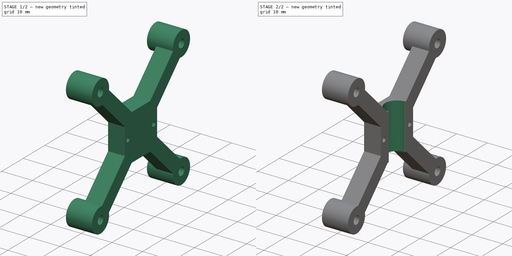
[diagram: build sequence overview — one tinted view per stage of 2, left to right]
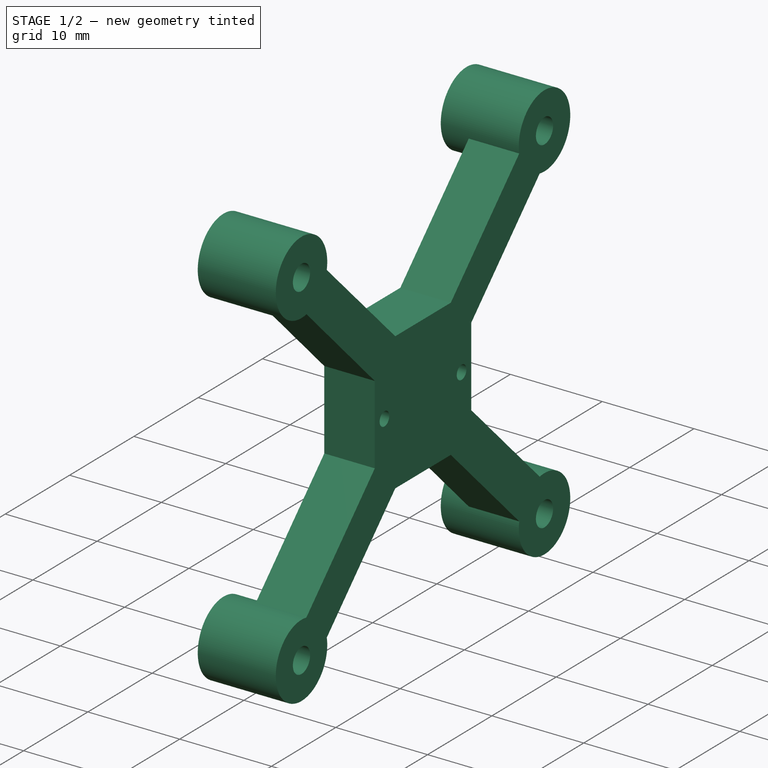
[diagram: stage 1 of 2 — iso view after this stage's code; geometry added in this stage tinted green]
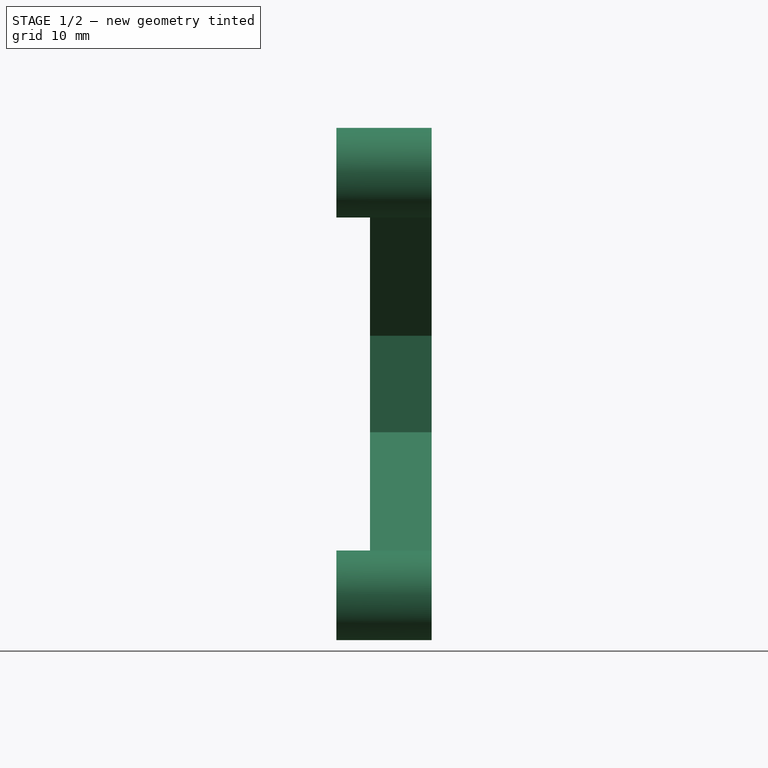
[diagram: stage 1 of 2 — front view after this stage's code; geometry added in this stage tinted green]
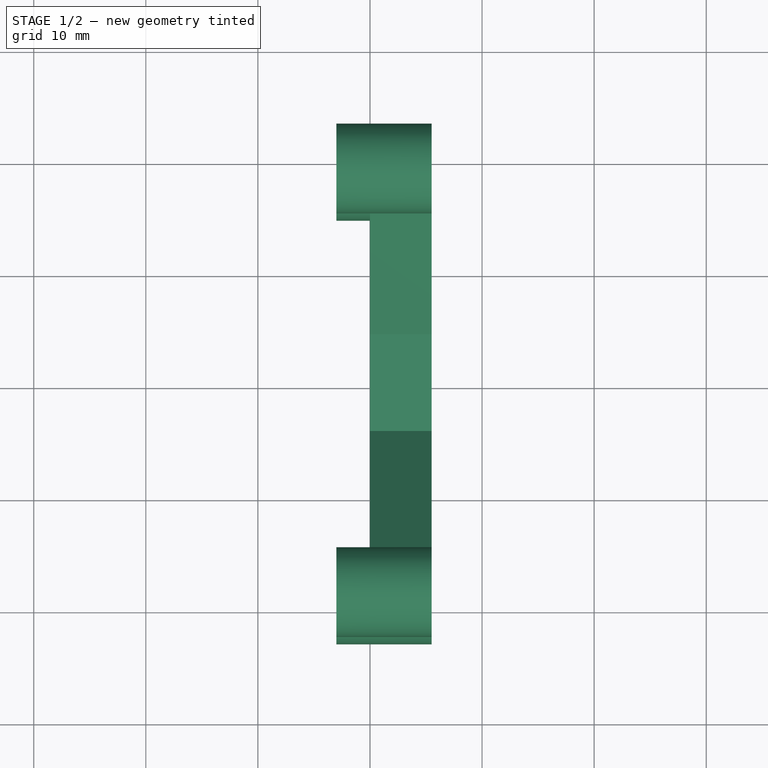
[diagram: stage 1 of 2 — top view after this stage's code; geometry added in this stage tinted green]
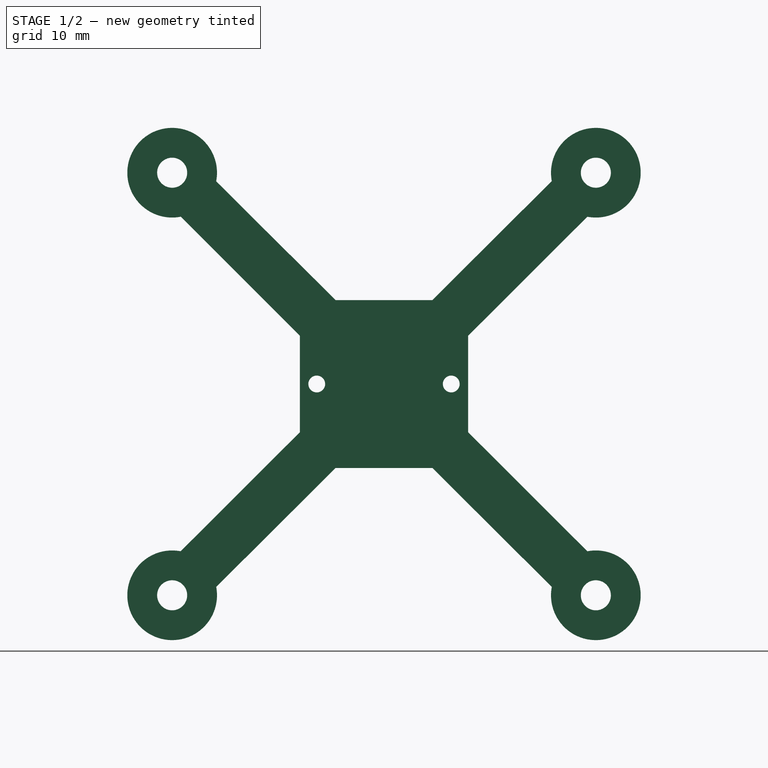
[diagram: stage 1 of 2 — right view after this stage's code; geometry added in this stage tinted green]
FCSTD DOCUMENT  (FreeCAD 0.18R16093 (Git))
Label: Soporte_Drivers
License: All rights reserved
LicenseURL: http://en.wikipedia.org/wiki/All_rights_reserved
objects: Sketcher::SketchObject×3, PartDesign::Pad×2, PartDesign::Pocket×1, PartDesign::Body×1
note: 10 computed .brp shape members not serialized (recipe doc carries the construction recipe); baked Part::Feature solids carry a one-line shape summary decoded from their .brp

FEATURE [Sketcher::SketchObject] Sketch149
  MapMode = 5
  Placement = pos=(0,0,0) rot=(0.57735,0.57735,0.57735;2.0944rad)
  Support = -> [YZ_Plane060]
  sketch-geometry (29):
    g0: LineSegment [constr] StartX=-22 StartY=21.95 StartZ=0 EndX=22 EndY=21.95 EndZ=0
    g1: LineSegment [constr] StartX=22 StartY=21.95 StartZ=0 EndX=22 EndY=-25.05 EndZ=0
    g2: LineSegment [constr] StartX=22 StartY=-25.05 StartZ=0 EndX=-22 EndY=-25.05 EndZ=0
    g3: LineSegment [constr] StartX=-22 StartY=-25.05 StartZ=0 EndX=-22 EndY=21.95 EndZ=0
    g4: Circle CenterX=-18.9 CenterY=18.85 CenterZ=0 NormalX=0 NormalY=0 NormalZ=1 AngleXU=0 Radius=1.34
    g5: Circle CenterX=18.9 CenterY=18.85 CenterZ=0 NormalX=0 NormalY=0 NormalZ=1 AngleXU=0 Radius=1.34
    g6: Circle CenterX=-18.9 CenterY=-18.85 CenterZ=0 NormalX=0 NormalY=0 NormalZ=1 AngleXU=0 Radius=1.34
    g7: Circle CenterX=18.9 CenterY=-18.85 CenterZ=0 NormalX=0 NormalY=0 NormalZ=1 AngleXU=0 Radius=1.34
    g8: ArcOfCircle CenterX=-18.9 CenterY=18.85 CenterZ=0 NormalX=0 NormalY=0 NormalZ=1 AngleXU=0 Radius=4 StartAngle=6.09051 EndAngle=11.1909
    g9: LineSegment StartX=0 StartY=7.48858 StartZ=0 EndX=-4.32224 EndY=7.48858 EndZ=0
    g10: LineSegment StartX=-18.1237 StartY=14.9261 StartZ=0 EndX=-7.5 EndY=4.30238 EndZ=0
    g11: LineSegment StartX=-14.974 StartY=18.0841 StartZ=0 EndX=-4.32224 EndY=7.48858 EndZ=0
    g12: LineSegment StartX=0 StartY=7.48858 StartZ=0 EndX=4.32224 EndY=7.48858 EndZ=0
    g13: LineSegment StartX=14.9695 StartY=18.1077 StartZ=0 EndX=4.32224 EndY=7.48858 EndZ=0
    g14: ArcOfCircle CenterX=18.9 CenterY=18.85 CenterZ=0 NormalX=0 NormalY=0 NormalZ=1 AngleXU=0 Radius=4 StartAngle=4.52307 EndAngle=9.61145
    g15: LineSegment StartX=18.1473 StartY=14.9215 StartZ=0 EndX=7.5 EndY=4.30238 EndZ=0
    g16: LineSegment StartX=7.5 StartY=4.30238 StartZ=0 EndX=7.5 EndY=-4.30238 EndZ=0
    g17: LineSegment [constr] StartX=-18.9 StartY=18.85 StartZ=0 EndX=18.9 EndY=-18.85 EndZ=0
    g18: LineSegment [constr] StartX=-18.9 StartY=-18.85 StartZ=0 EndX=18.9 EndY=18.85 EndZ=0
    g19: LineSegment StartX=-7.5 StartY=-4.30238 StartZ=0 EndX=-7.5 EndY=4.30238 EndZ=0
    g20: LineSegment StartX=-18.1473 StartY=-14.9215 StartZ=0 EndX=-7.5 EndY=-4.30238 EndZ=0
    g21: LineSegment StartX=-14.9695 StartY=-18.1077 StartZ=0 EndX=-4.32224 EndY=-7.48858 EndZ=0
    g22: LineSegment StartX=4.32224 StartY=-7.48858 StartZ=0 EndX=-4.32224 EndY=-7.48858 EndZ=0
    g23: LineSegment StartX=14.9695 StartY=-18.1077 StartZ=0 EndX=4.32224 EndY=-7.48858 EndZ=0
    g24: LineSegment StartX=18.1473 StartY=-14.9215 StartZ=0 EndX=7.5 EndY=-4.30238 EndZ=0
    g25: ArcOfCircle CenterX=-18.9 CenterY=-18.85 CenterZ=0 NormalX=0 NormalY=0 NormalZ=1 AngleXU=0 Radius=4 StartAngle=1.38148 EndAngle=6.46985
    g26: ArcOfCircle CenterX=18.9 CenterY=-18.85 CenterZ=0 NormalX=0 NormalY=0 NormalZ=1 AngleXU=0 Radius=4 StartAngle=2.95493 EndAngle=8.0433
    g27: Circle CenterX=-6 CenterY=0 CenterZ=0 NormalX=0 NormalY=0 NormalZ=1 AngleXU=0 Radius=0.75
    g28: Circle CenterX=6 CenterY=0 CenterZ=0 NormalX=0 NormalY=0 NormalZ=1 AngleXU=0 Radius=0.75
  constraints (79):
    c: Coincident(g0,g1)
    c: Coincident(g1,g2)
    c: Coincident(g2,g3)
    c: Coincident(g3,g0)
    c: Horizontal(g2)
    c: Vertical(g1)
    c: Symmetric(g0,g0,g-2)
    c: Radius(g4) = 1.34
    c: Distance(g4,g3) = 3.1
    c: Distance(g4,g0) = 3.1
    c: Radius(g5) = 1.34
    c: Distance(g5,g0) = 3.1
    c: Distance(g5,g1) = 3.1
    c: Radius(g6) = 1.34
    c: Distance(g6,g3) = 3.1
    c: Distance(g6,g2) = 6.2
    c: Radius(g7) = 1.34
    c: Distance(g7,g1) = 3.1
    c: Distance(g7,g2) = 6.2
    c: Distance(g5,g4) = 37.8
    c: Distance(g4,g6) = 37.7
    c: Radius(g8) = 4
    c: Coincident(g8,g4)
    c: Horizontal(g9)
    c: Symmetric(g6,g4,g-1)
    c: Angle(g-1,g10) = 2.35619
    c: PointOnObject(g9,g-2)
    c: Coincident(g9,g11)
    c: Coincident(g8,g11)
    c: Coincident(g8,g10)
    c: Radius(g14) = 4
    c: Vertical(g16)
    c: Parallel(g13,g15)
    c: Coincident(g12,g13)
    c: Coincident(g16,g15)
    c: Coincident(g14,g13)
    c: Coincident(g14,g15)
    c: Coincident(g9,g12)
    c: Symmetric(g9,g12,g-2)
    c: Coincident(g17,g4)
    c: Coincident(g17,g7)
    c: Symmetric(g9,g10,g17)
    c: Coincident(g18,g14)
    c: Coincident(g14,g5)
    c: Symmetric(g15,g12,g18)
    c: Symmetric(g14,g13,g18)
    c: Coincident(g18,g6)
    c: Symmetric(g8,g8,g17)
    c: Distance(g9,g10) = 4.5
    c: Horizontal(g22)
    c: Vertical(g19)
    c: Coincident(g22,g21)
    c: Coincident(g19,g20)
    c: Parallel(g23,g24)
    c: Distance(g22,g19) = 4.5
    c: Symmetric(g23,g24,g17)
    c: Distance(g23,g24) = 4.5
    c: Symmetric(g21,g19,g18)
    c: Parallel(g20,g21)
    c: Coincident(g23,g22)
    c: Coincident(g19,g10)
    c: DistanceX(g10,g15) = 15
    c: Coincident(g16,g24)
    c: Diameter(g25) = 8
    c: Coincident(g25,g20)
    c: Coincident(g25,g21)
    c: Coincident(g6,g25)
    c: Diameter(g26) = 8
    c: Coincident(g26,g7)
    c: Coincident(g26,g23)
    c: Coincident(g26,g24)
    c: Symmetric(g23,g24,g17)
    c: Symmetric(g20,g21,g18)
    c: Diameter(g27) = 1.5
    c: Distance(g27,g19) = 1.5
    c: PointOnObject(g27,g-1)
    c: Diameter(g28) = 1.5
    c: PointOnObject(g28,g-1)
    c: Distance(g28,g16) = 1.5
FEATURE [PartDesign::Pad] Pad074
  Length = 5.5
  Length2 = 100
  Placement = pos=(0,0,0) rot=(0.57735,0.57735,0.57735;2.0944rad)
  Profile = -> Sketch149
  Type = 0
FEATURE [Sketcher::SketchObject] Sketch150
  ExternalGeometry = -> [Pad074]
  MapMode = 5
  Placement = pos=(0,0,0) rot=(0.57735,0.57735,-0.57735;4.18879rad)
  Support = -> [Pad074]
  sketch-geometry (8):
    g0: Circle CenterX=-18.9 CenterY=-18.85 CenterZ=0 NormalX=0 NormalY=0 NormalZ=1 AngleXU=0 Radius=4
    g1: Circle CenterX=18.9 CenterY=-18.85 CenterZ=0 NormalX=0 NormalY=0 NormalZ=1 AngleXU=0 Radius=4
    g2: Circle CenterX=-18.9 CenterY=18.85 CenterZ=0 NormalX=0 NormalY=0 NormalZ=1 AngleXU=0 Radius=4
    g3: Circle CenterX=18.9 CenterY=18.85 CenterZ=0 NormalX=0 NormalY=0 NormalZ=1 AngleXU=0 Radius=4
    g4: Circle CenterX=-18.9 CenterY=-18.85 CenterZ=0 NormalX=0 NormalY=0 NormalZ=1 AngleXU=0 Radius=1.34
    g5: Circle CenterX=18.9 CenterY=-18.85 CenterZ=0 NormalX=0 NormalY=0 NormalZ=1 AngleXU=0 Radius=1.34
    g6: Circle CenterX=18.9 CenterY=18.85 CenterZ=0 NormalX=0 NormalY=0 NormalZ=1 AngleXU=0 Radius=1.34
    g7: Circle CenterX=-18.9 CenterY=18.85 CenterZ=0 NormalX=0 NormalY=0 NormalZ=1 AngleXU=0 Radius=1.34
  constraints (16):
    c: Coincident(g0,g-3)
    c: Diameter(g0) = 8
    c: Diameter(g1) = 8
    c: Diameter(g2) = 8
    c: Diameter(g3) = 8
    c: Coincident(g2,g-6)
    c: Coincident(g3,g-5)
    c: Coincident(g1,g-4)
    c: Equal(g4,g-3)
    c: Coincident(g4,g0)
    c: Equal(g-4,g5)
    c: Coincident(g5,g1)
    c: Equal(g6,g-5)
    c: Coincident(g6,g3)
    c: Equal(g7,g-6)
    c: Coincident(g7,g2)
FEATURE [PartDesign::Pad] Pad075
  BaseFeature = -> Pad074
  Length = 3
  Length2 = 100
  Placement = pos=(0,0,0) rot=(0.57735,0.57735,0.57735;2.0944rad)
  Profile = -> Sketch150
  Type = 0
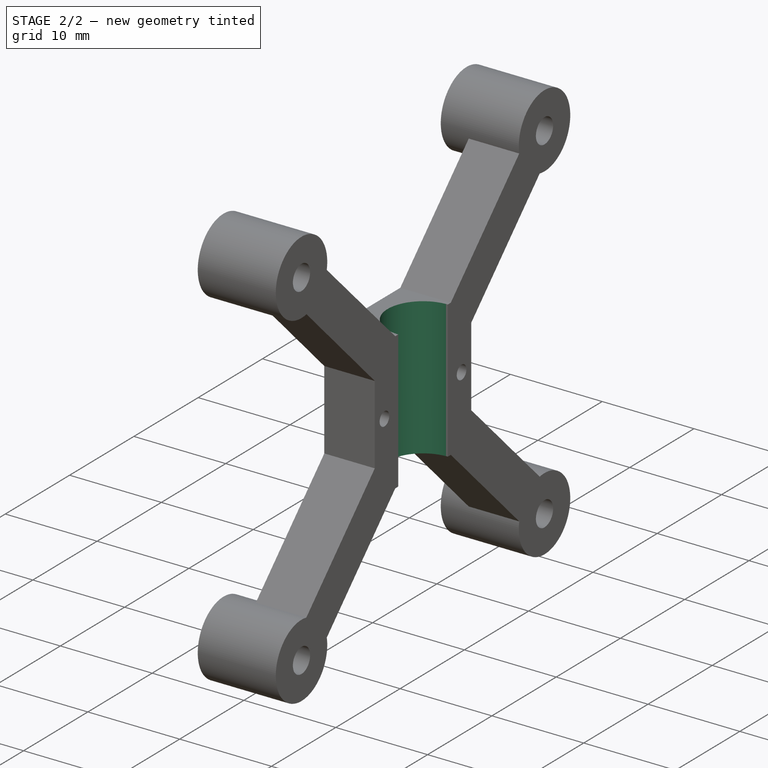
[diagram: stage 2 of 2 — iso view after this stage's code; geometry added in this stage tinted green]
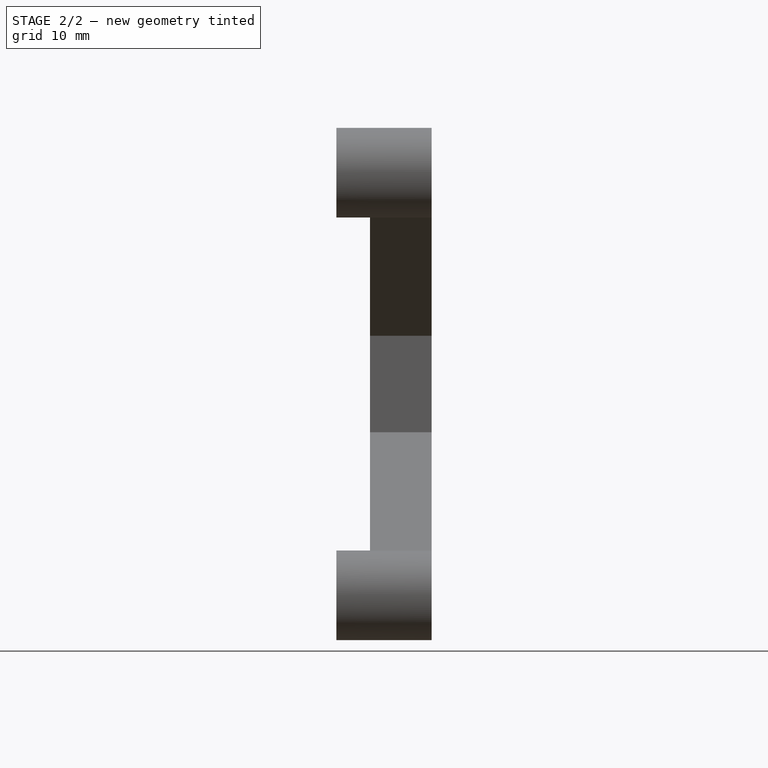
[diagram: stage 2 of 2 — front view after this stage's code; geometry added in this stage tinted green]
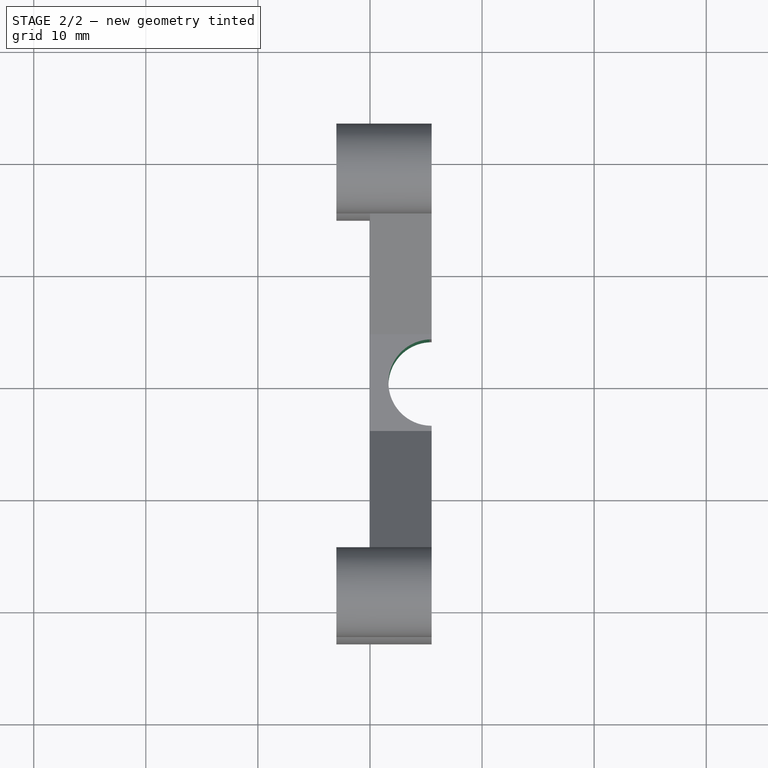
[diagram: stage 2 of 2 — top view after this stage's code; geometry added in this stage tinted green]
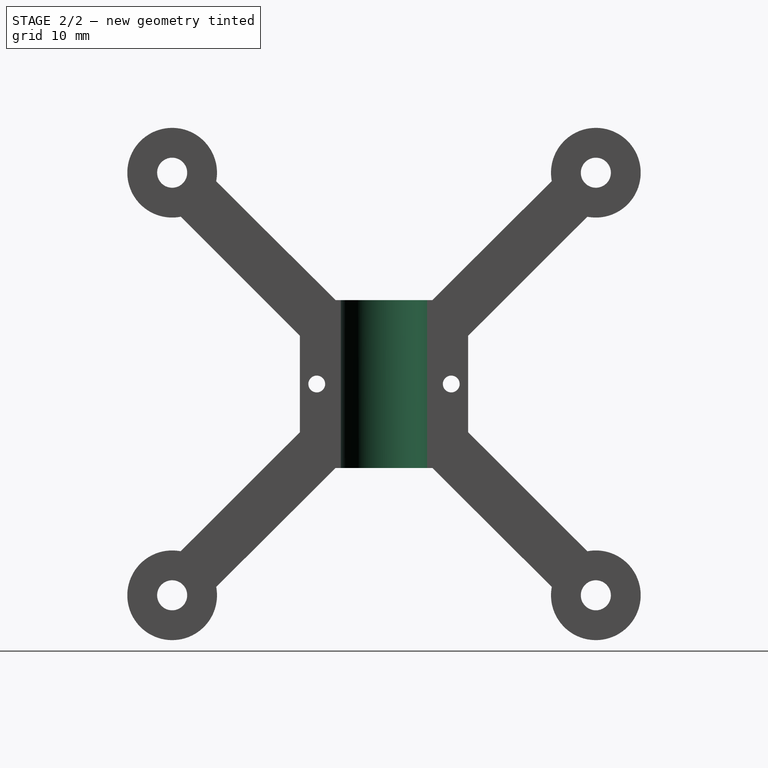
[diagram: stage 2 of 2 — right view after this stage's code; geometry added in this stage tinted green]
FEATURE [Sketcher::SketchObject] Sketch151
  ExternalGeometry = -> [Pad075]
  MapMode = 5
  Placement = pos=(2.1e-15,-3.3e-15,-7.48858) rot=(0.707107,0.707107,0;3.14159rad)
  Support = -> [Pad075]
  sketch-geometry (1):
    g0: Circle CenterX=0 CenterY=5.5 CenterZ=0 NormalX=0 NormalY=0 NormalZ=1 AngleXU=0 Radius=3.855
  constraints (3):
    c: Diameter(g0) = 7.71
    c: PointOnObject(g0,g-3)
    c: PointOnObject(g0,g-2)
FEATURE [PartDesign::Pocket] Pocket058
  BaseFeature = -> Pad075
  Length = 5
  Length2 = 100
  Placement = pos=(0,0,0) rot=(0.57735,0.57735,0.57735;2.0944rad)
  Profile = -> Sketch151
  Type = 1
FEATURE [PartDesign::Body] Body060  label="Driver_Mount"
  Group = -> [Sketch149,Pad074,Sketch150,Pad075,Sketch151,Pocket058]
  Origin = -> Origin060
  Tip = -> Pocket058
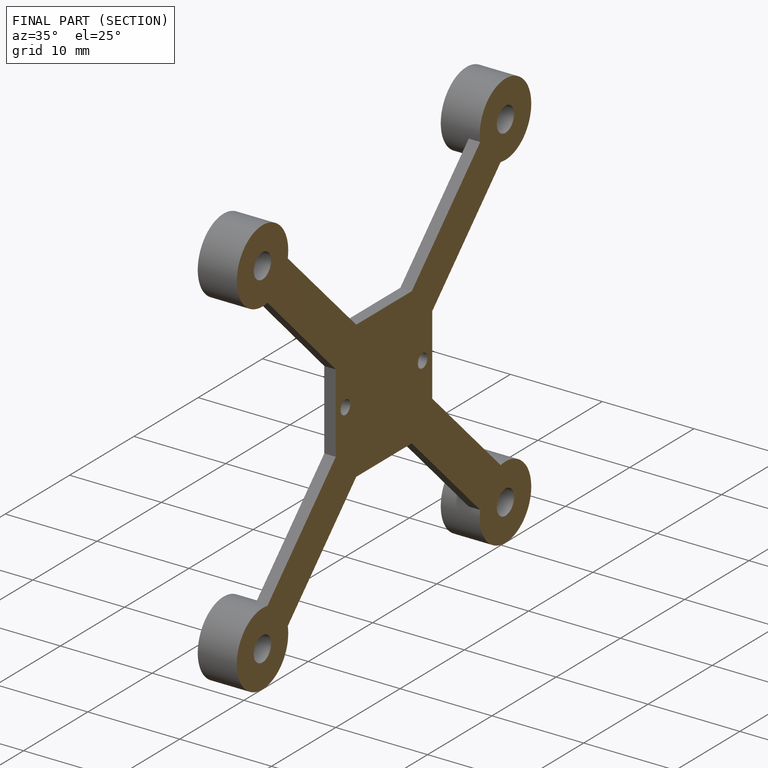
[diagram: finished part — half-section view (interior)]
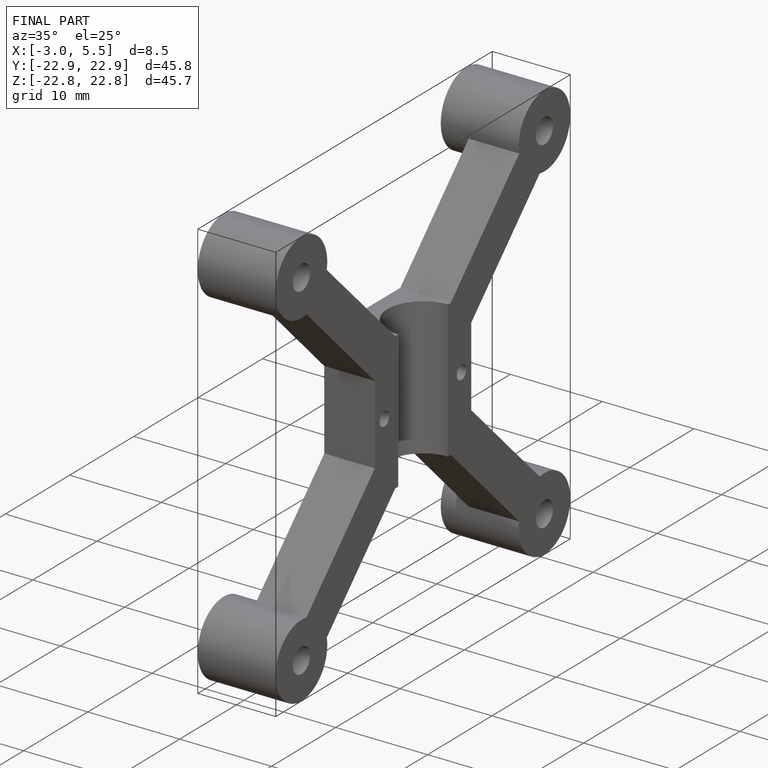
[diagram: finished part — iso view with bounding-box wireframe]
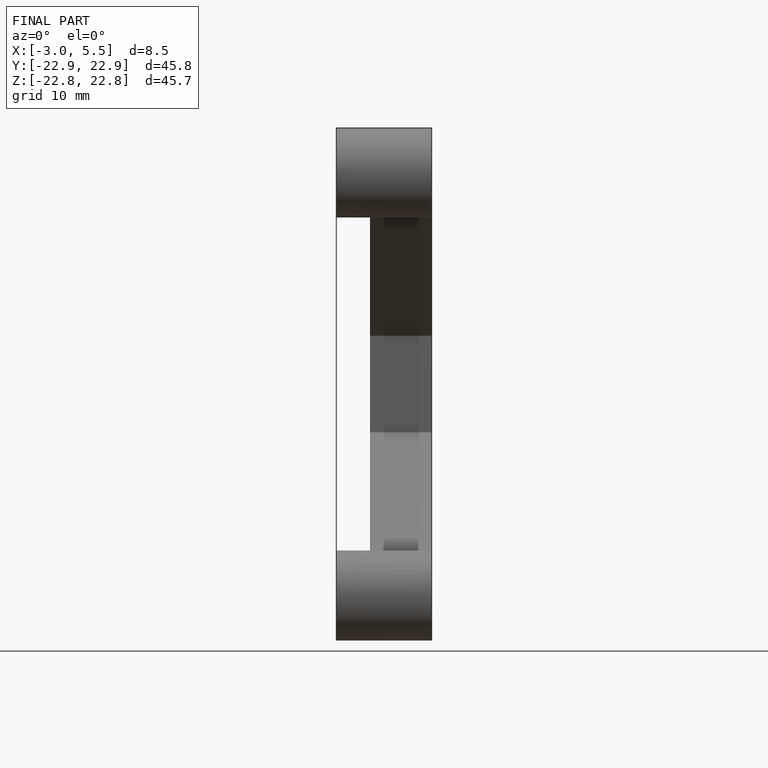
[diagram: finished part — front view with bounding-box wireframe]
